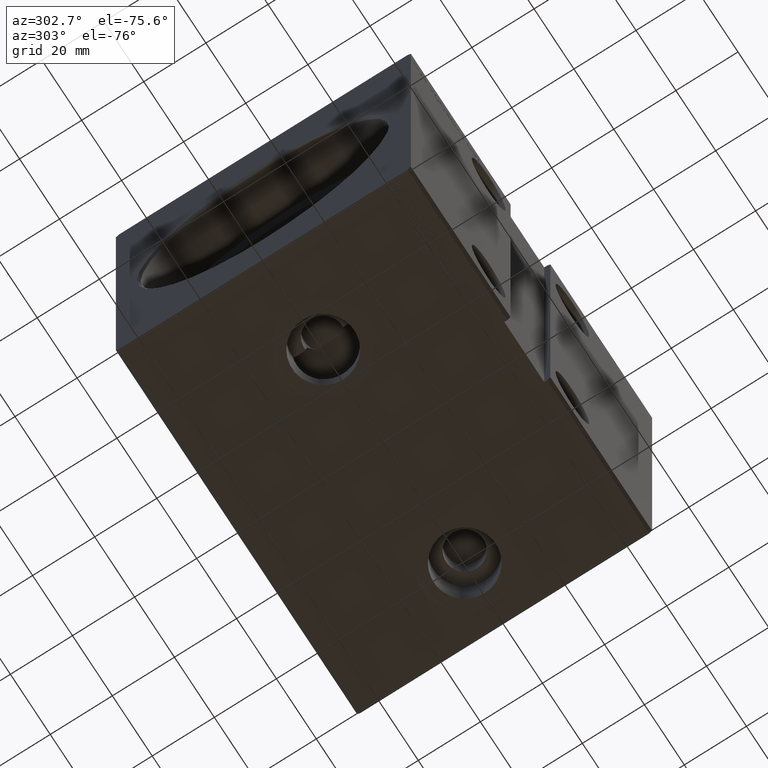
[diagram: clean part render]
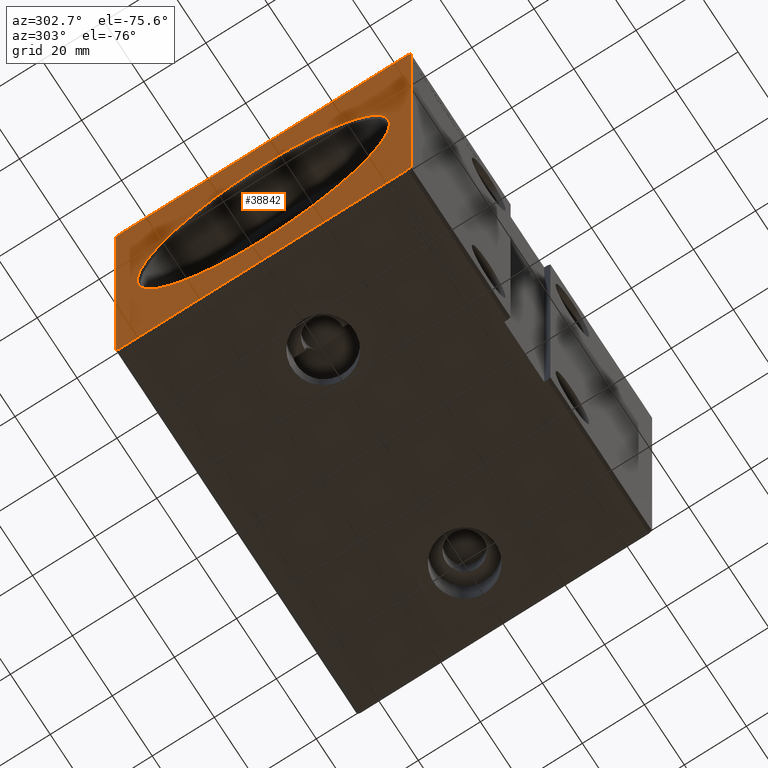
[diagram: same view with one face highlighted and labeled with its STEP entity id]
A machine part, auxiliary view. The second image highlights one B-rep face of the part: STEP entity #38842.
In plain terms, the highlighted planar face has unit normal (1, 0, 0).
Its self-contained STEP definition (entity closure, byte-faithful):
#730 = EDGE_CURVE ( 'NONE', #14828, #18310, #20742, .T. ) ;
#798 = VERTEX_POINT ( 'NONE', #34475 ) ;
#1068 = VERTEX_POINT ( 'NONE', #35008 ) ;
#2727 = AXIS2_PLACEMENT_3D ( 'NONE', #2905, #5694, #38718 ) ;
#2905 = CARTESIAN_POINT ( 'NONE',  ( 0.000000000000000000, 0.000000000000000000, 0.000000000000000000 ) ) ;
#2982 = CARTESIAN_POINT ( 'NONE',  ( 0.000000000000000000, -46.50000000000000000, -62.50000000000001421 ) ) ;
#3733 = LINE ( 'NONE', #10751, #40825 ) ;
#3888 = ORIENTED_EDGE ( 'NONE', *, *, #19033, .T. ) ;
#3975 = ORIENTED_EDGE ( 'NONE', *, *, #26087, .F. ) ;
#4210 = CARTESIAN_POINT ( 'NONE',  ( 0.000000000000000000, 47.50000000000000000, 61.49999999999998579 ) ) ;
#5694 = DIRECTION ( 'NONE',  ( 1.000000000000000000, 0.000000000000000000, 0.000000000000000000 ) ) ;
#5965 = ORIENTED_EDGE ( 'NONE', *, *, #22120, .F. ) ;
#6117 = FACE_BOUND ( 'NONE', #28384, .T. ) ;
#6191 = DIRECTION ( 'NONE',  ( 0.000000000000000000, -0.7071067811865474617, 0.7071067811865474617 ) ) ;
#6696 = EDGE_LOOP ( 'NONE', ( #5965, #33573, #35655, #37151, #40356, #34686, #37095, #3975 ) ) ;
#6968 = VERTEX_POINT ( 'NONE', #36809 ) ;
#8833 = CARTESIAN_POINT ( 'NONE',  ( 0.000000000000000000, 46.50000000000000000, -62.50000000000000000 ) ) ;
#9038 = CIRCLE ( 'NONE', #25386, 40.70000000000001705 ) ;
#9384 = CARTESIAN_POINT ( 'NONE',  ( 0.000000000000000000, 47.50000000000000000, 61.49999999999998579 ) ) ;
#9439 = EDGE_CURVE ( 'NONE', #38941, #26270, #3733, .T. ) ;
#9807 = DIRECTION ( 'NONE',  ( 0.000000000000000000, 1.000000000000000000, 1.492235248152092278E-16 ) ) ;
#9977 = CARTESIAN_POINT ( 'NONE',  ( 0.000000000000000000, 47.50000000000001421, -61.50000000000001421 ) ) ;
#10199 = CARTESIAN_POINT ( 'NONE',  ( 0.000000000000000000, 0.000000000000000000, 0.000000000000000000 ) ) ;
#10556 = CARTESIAN_POINT ( 'NONE',  ( 0.000000000000000000, -46.50000000000001421, 62.49999999999997868 ) ) ;
#10692 = CARTESIAN_POINT ( 'NONE',  ( 0.000000000000000000, 46.50000000000000000, 62.49999999999998579 ) ) ;
#10751 = CARTESIAN_POINT ( 'NONE',  ( 0.000000000000000000, -46.50000000000001421, 62.49999999999997868 ) ) ;
#10915 = VECTOR ( 'NONE', #18817, 1000.000000000000114 ) ;
#11747 = EDGE_CURVE ( 'NONE', #26270, #6968, #15102, .T. ) ;
#11814 = LINE ( 'NONE', #8833, #11949 ) ;
#11949 = VECTOR ( 'NONE', #35030, 999.9999999999998863 ) ;
#12868 = VERTEX_POINT ( 'NONE', #4210 ) ;
#14828 = VERTEX_POINT ( 'NONE', #39717 ) ;
#15022 = CARTESIAN_POINT ( 'NONE',  ( 0.000000000000000000, 0.000000000000000000, 0.000000000000000000 ) ) ;
#15102 = LINE ( 'NONE', #35120, #23778 ) ;
#16742 = DIRECTION ( 'NONE',  ( 0.000000000000000000, -0.7071067811865474617, -0.7071067811865474617 ) ) ;
#17333 = EDGE_CURVE ( 'NONE', #31183, #12868, #35871, .T. ) ;
#18310 = VERTEX_POINT ( 'NONE', #23449 ) ;
#18788 = LINE ( 'NONE', #2982, #29219 ) ;
#18817 = DIRECTION ( 'NONE',  ( 0.000000000000000000, 0.7071067811865451302, -0.7071067811865500152 ) ) ;
#19033 = EDGE_CURVE ( 'NONE', #18310, #14828, #9038, .T. ) ;
#19204 = CARTESIAN_POINT ( 'NONE',  ( 0.000000000000000000, -47.50000000000001421, 61.49999999999997868 ) ) ;
#19322 = VECTOR ( 'NONE', #6191, 1000.000000000000114 ) ;
#20006 = DIRECTION ( 'NONE',  ( 1.000000000000000000, 0.000000000000000000, 0.000000000000000000 ) ) ;
#20070 = AXIS2_PLACEMENT_3D ( 'NONE', #10199, #20006, #29810 ) ;
#20518 = CARTESIAN_POINT ( 'NONE',  ( 0.000000000000000000, 47.50000000000001421, -61.50000000000001421 ) ) ;
#20742 = CIRCLE ( 'NONE', #20070, 40.70000000000001705 ) ;
#21531 = CARTESIAN_POINT ( 'NONE',  ( 0.000000000000000000, -46.50000000000000000, -62.50000000000001421 ) ) ;
#21843 = DIRECTION ( 'NONE',  ( 1.000000000000000000, 0.000000000000000000, 0.000000000000000000 ) ) ;
#22120 = EDGE_CURVE ( 'NONE', #12868, #798, #38581, .T. ) ;
#22901 = ORIENTED_EDGE ( 'NONE', *, *, #730, .T. ) ;
#23449 = CARTESIAN_POINT ( 'NONE',  ( 0.000000000000000000, 4.984312472529728892E-15, -40.70000000000001705 ) ) ;
#23500 = DIRECTION ( 'NONE',  ( 0.000000000000000000, -1.128275431529630729E-16, 1.000000000000000000 ) ) ;
#23778 = VECTOR ( 'NONE', #41113, 1000.000000000000000 ) ;
#25121 = VERTEX_POINT ( 'NONE', #21531 ) ;
#25386 = AXIS2_PLACEMENT_3D ( 'NONE', #15022, #21843, #41242 ) ;
#26087 = EDGE_CURVE ( 'NONE', #798, #38941, #37112, .T. ) ;
#26270 = VERTEX_POINT ( 'NONE', #19204 ) ;
#26715 = EDGE_CURVE ( 'NONE', #1068, #31183, #11814, .T. ) ;
#28003 = CARTESIAN_POINT ( 'NONE',  ( 0.000000000000000000, -47.49999999999999289, -61.50000000000001421 ) ) ;
#28384 = EDGE_LOOP ( 'NONE', ( #22901, #3888 ) ) ;
#28636 = LINE ( 'NONE', #28003, #10915 ) ;
#29219 = VECTOR ( 'NONE', #9807, 1000.000000000000000 ) ;
#29604 = VECTOR ( 'NONE', #30518, 1000.000000000000000 ) ;
#29810 = DIRECTION ( 'NONE',  ( 0.000000000000000000, 0.000000000000000000, -1.000000000000000000 ) ) ;
#30518 = DIRECTION ( 'NONE',  ( 0.000000000000000000, -1.000000000000000000, -7.461176240760460157E-17 ) ) ;
#31183 = VERTEX_POINT ( 'NONE', #9977 ) ;
#33573 = ORIENTED_EDGE ( 'NONE', *, *, #17333, .F. ) ;
#34475 = CARTESIAN_POINT ( 'NONE',  ( 0.000000000000000000, 46.50000000000000000, 62.49999999999998579 ) ) ;
#34686 = ORIENTED_EDGE ( 'NONE', *, *, #11747, .F. ) ;
#34894 = FACE_OUTER_BOUND ( 'NONE', #6696, .T. ) ;
#35008 = CARTESIAN_POINT ( 'NONE',  ( 0.000000000000000000, 46.50000000000000000, -62.50000000000000000 ) ) ;
#35030 = DIRECTION ( 'NONE',  ( 0.000000000000000000, 0.7071067811865574537, 0.7071067811865376918 ) ) ;
#35120 = CARTESIAN_POINT ( 'NONE',  ( 0.000000000000000000, -47.50000000000001421, 61.49999999999997868 ) ) ;
#35345 = EDGE_CURVE ( 'NONE', #25121, #1068, #18788, .T. ) ;
#35655 = ORIENTED_EDGE ( 'NONE', *, *, #26715, .F. ) ;
#35871 = LINE ( 'NONE', #20518, #40234 ) ;
#36809 = CARTESIAN_POINT ( 'NONE',  ( 0.000000000000000000, -47.49999999999999289, -61.50000000000001421 ) ) ;
#37095 = ORIENTED_EDGE ( 'NONE', *, *, #9439, .F. ) ;
#37112 = LINE ( 'NONE', #10692, #29604 ) ;
#37151 = ORIENTED_EDGE ( 'NONE', *, *, #35345, .F. ) ;
#38581 = LINE ( 'NONE', #9384, #19322 ) ;
#38718 = DIRECTION ( 'NONE',  ( 0.000000000000000000, 0.000000000000000000, -1.000000000000000000 ) ) ;
#38842 = ADVANCED_FACE ( 'NONE', ( #6117, #34894 ), #41927, .F. ) ;
#38941 = VERTEX_POINT ( 'NONE', #10556 ) ;
#39717 = CARTESIAN_POINT ( 'NONE',  ( 0.000000000000000000, 0.000000000000000000, 40.70000000000001705 ) ) ;
#40234 = VECTOR ( 'NONE', #23500, 1000.000000000000000 ) ;
#40284 = EDGE_CURVE ( 'NONE', #6968, #25121, #28636, .T. ) ;
#40356 = ORIENTED_EDGE ( 'NONE', *, *, #40284, .F. ) ;
#40825 = VECTOR ( 'NONE', #16742, 1000.000000000000114 ) ;
#41113 = DIRECTION ( 'NONE',  ( 0.000000000000000000, 1.692413147294445970E-16, -1.000000000000000000 ) ) ;
#41242 = DIRECTION ( 'NONE',  ( 0.000000000000000000, 0.000000000000000000, -1.000000000000000000 ) ) ;
#41927 = PLANE ( 'NONE',  #2727 ) ;